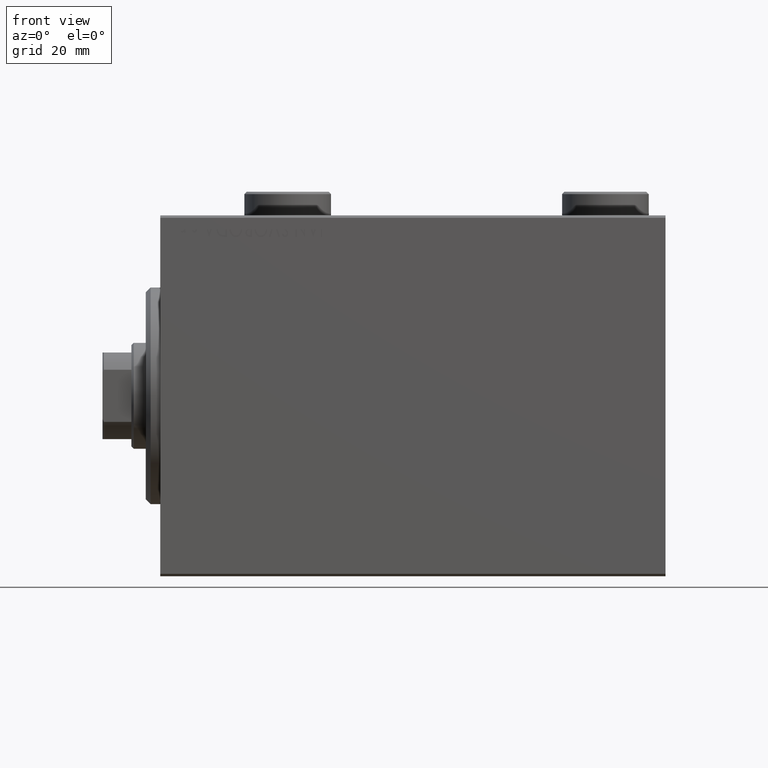
[diagram: clean part render]
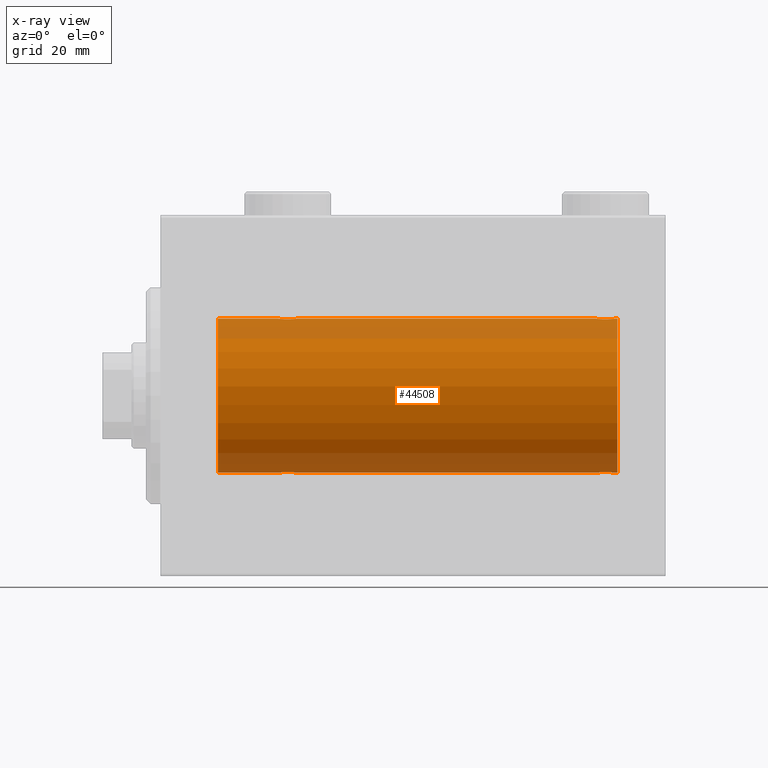
[diagram: x-ray — body ghosted, one internal face saturated and labeled with its STEP entity id]
A machine part, front view, then the same camera in x-ray: the body is ghosted and one INTERNAL B-rep face — a face not visible from any outside direction — is saturated and labeled: STEP entity #44508.
In plain terms, the highlighted cylindrical surface (partial cylindrical patch) has radius 16 mm, axis along (-1, -0, -0).
Its self-contained STEP definition (entity closure, byte-faithful):
#91 = VERTEX_POINT ( 'NONE', #16807 ) ;
#100 = ORIENTED_EDGE ( 'NONE', *, *, #30499, .T. ) ;
#271 = CARTESIAN_POINT ( 'NONE',  ( 25.17695155286792286, -1.505501573616977673, 15.92928245046054947 ) ) ;
#354 = VERTEX_POINT ( 'NONE', #15163 ) ;
#646 = CARTESIAN_POINT ( 'NONE',  ( 90.90061418674619631, -1.228793614424119829, 15.95381972293797013 ) ) ;
#880 = CARTESIAN_POINT ( 'NONE',  ( 92.36633336824381502, -1.999904855391108960, 15.87451985347843042 ) ) ;
#1058 = B_SPLINE_CURVE_WITH_KNOTS ( 'NONE', 3,
 ( #35752, #10642, #31847, #10871, #38749, #271, #18245, #27943, #13651, #41744, #10181, #11770, #36430, #43794, #11541, #29747, #11320, #32737, #42888, #1170, #14790, #25840, #15697, #29293, #32513, #26063 ),
 .UNSPECIFIED., .F., .F.,
 ( 4, 2, 2, 2, 2, 2, 2, 2, 2, 2, 2, 2, 4 ),
 ( 0.006259031236593858190, 0.007041222816026928080, 0.007823414395459998838, 0.008214510185176533349, 0.008605605974893067861, 0.008996701764609604107, 0.009387797554326138619, 0.009778893344042673130, 0.01016998913375920938, 0.01056108492347574389, 0.01095218071319227840, 0.01173437229262534048, 0.01251656387205840430 ),
 .UNSPECIFIED. ) ;
#1097 = CARTESIAN_POINT ( 'NONE',  ( 91.27971966521590730, -1.589957129871035102, 15.92097237843275259 ) ) ;
#1170 = CARTESIAN_POINT ( 'NONE',  ( 27.71821872840285295, -1.591545514129674821, 15.92081325887754595 ) ) ;
#1700 = EDGE_CURVE ( 'NONE', #28272, #91, #24541, .T. ) ;
#1932 = CARTESIAN_POINT ( 'NONE',  ( 27.38846140829280529, -1.796613193944152753, -15.89889131367403330 ) ) ;
#1995 = CARTESIAN_POINT ( 'NONE',  ( 92.23917179650634068, -1.987201773464433607, -15.87613558886576470 ) ) ;
#2225 = CARTESIAN_POINT ( 'NONE',  ( 93.82304844713209491, -1.505501573616973898, -15.92928245046055302 ) ) ;
#3053 = AXIS2_PLACEMENT_3D ( 'NONE', #3920, #38714, #7145 ) ;
#3920 = CARTESIAN_POINT ( 'NONE',  ( 95.00000000000000000, 0.000000000000000000, 0.000000000000000000 ) ) ;
#4779 = CARTESIAN_POINT ( 'NONE',  ( 93.14376670717342677, -1.898087287925297462, 15.88709570026284723 ) ) ;
#4946 = CARTESIAN_POINT ( 'NONE',  ( 28.44751141031268915, -0.5244724041436300555, -15.99321727742820620 ) ) ;
#5238 = CARTESIAN_POINT ( 'NONE',  ( 93.82104334803408108, -1.507256214862775723, 15.92911555180482175 ) ) ;
#5400 = CARTESIAN_POINT ( 'NONE',  ( 28.09938581325380724, -1.228793614424118497, -15.95381972293796835 ) ) ;
#5614 = CARTESIAN_POINT ( 'NONE',  ( 26.76370462878175260, -1.986819684797417995, -15.87618369521984185 ) ) ;
#5772 = ORIENTED_EDGE ( 'NONE', *, *, #32709, .F. ) ;
#6042 = B_SPLINE_CURVE_WITH_KNOTS ( 'NONE', 3,
 ( #22089, #8013, #32673, #36370, #16528, #2225, #36819, #30348, #15848, #26441, #44630, #37041, #37484, #29897, #1995, #44401, #40487, #27124, #19992, #12832, #8468, #23210, #22546, #34043, #43948, #13061 ),
 .UNSPECIFIED., .F., .F.,
 ( 4, 2, 2, 2, 2, 2, 2, 2, 2, 2, 2, 2, 4 ),
 ( 0.006259031236593878139, 0.007041222816026954968, 0.007823414395460031798, 0.008214510185176569779, 0.008605605974893107760, 0.008996701764609645741, 0.009387797554326183722, 0.009778893344042721703, 0.01016998913375926142, 0.01056108492347579940, 0.01095218071319233738, 0.01173437229262538559, 0.01251656387205843206 ),
 .UNSPECIFIED. ) ;
#6090 = CARTESIAN_POINT ( 'NONE',  ( 25.49921634246596014, -1.736521253711144963, -15.90565326803671375 ) ) ;
#6482 = EDGE_CURVE ( 'NONE', #32427, #42300, #9057, .T. ) ;
#6516 = VERTEX_POINT ( 'NONE', #16207 ) ;
#6619 = CARTESIAN_POINT ( 'NONE',  ( 94.50000000000000000, 3.590027768233731054E-15, 16.00000000000000000 ) ) ;
#6701 = ORIENTED_EDGE ( 'NONE', *, *, #6482, .T. ) ;
#7145 = DIRECTION ( 'NONE',  ( 0.000000000000000000, 0.000000000000000000, 1.000000000000000000 ) ) ;
#7348 = LINE ( 'NONE', #29000, #38401 ) ;
#7734 = ORIENTED_EDGE ( 'NONE', *, *, #29167, .F. ) ;
#8007 = CARTESIAN_POINT ( 'NONE',  ( 93.01664001081056199, -1.936513707523808359, 15.88239801746206226 ) ) ;
#8013 = CARTESIAN_POINT ( 'NONE',  ( 94.50000000000001421, -0.2611263091397177938, -16.00000000000000000 ) ) ;
#8468 = CARTESIAN_POINT ( 'NONE',  ( 91.17895665196597577, -1.507256214862789268, -15.92911555180481464 ) ) ;
#8954 = CIRCLE ( 'NONE', #20765, 16.00000000000000000 ) ;
#8961 = CARTESIAN_POINT ( 'NONE',  ( 90.50000000000000000, -8.578174582294765095E-15, -16.00000000000000000 ) ) ;
#9057 = LINE ( 'NONE', #26806, #32303 ) ;
#9637 = DIRECTION ( 'NONE',  ( -1.000000000000000000, 0.000000000000000000, 0.000000000000000000 ) ) ;
#10062 = VERTEX_POINT ( 'NONE', #36659 ) ;
#10098 = CARTESIAN_POINT ( 'NONE',  ( 95.00000000000000000, 0.000000000000000000, 16.00000000000000000 ) ) ;
#10181 = CARTESIAN_POINT ( 'NONE',  ( 25.98062885452072734, -1.935780515549995862, 15.88248768234623221 ) ) ;
#10642 = CARTESIAN_POINT ( 'NONE',  ( 24.50000000000000355, -0.2611263091397209579, 16.00000000000000000 ) ) ;
#10665 = DIRECTION ( 'NONE',  ( 0.000000000000000000, 0.000000000000000000, 1.000000000000000000 ) ) ;
#10871 = CARTESIAN_POINT ( 'NONE',  ( 24.75183372993787856, -1.005876079953904600, 15.97016854943970543 ) ) ;
#11067 = FACE_OUTER_BOUND ( 'NONE', #13690, .T. ) ;
#11253 = CARTESIAN_POINT ( 'NONE',  ( 91.85363637129542269, -1.897207606501646771, 15.88720136683946471 ) ) ;
#11320 = CARTESIAN_POINT ( 'NONE',  ( 27.14376670717340545, -1.898087287925302125, 15.88709570026284545 ) ) ;
#11541 = CARTESIAN_POINT ( 'NONE',  ( 26.76082820349364866, -1.987201773464435828, 15.87613558886576470 ) ) ;
#11770 = CARTESIAN_POINT ( 'NONE',  ( 26.23629537121825095, -1.986819684797424435, 15.87618369521983475 ) ) ;
#11919 = ORIENTED_EDGE ( 'NONE', *, *, #30151, .T. ) ;
#11928 = CARTESIAN_POINT ( 'NONE',  ( 93.50078365753404341, -1.736521253711147628, 15.90565326803670665 ) ) ;
#12094 = CARTESIAN_POINT ( 'NONE',  ( 26.36919591423421139, -2.000094120337574388, -15.87449600834271024 ) ) ;
#12149 = CARTESIAN_POINT ( 'NONE',  ( 94.50000000000000000, 3.590027768233731054E-15, 16.00000000000000000 ) ) ;
#12690 = DIRECTION ( 'NONE',  ( -1.000000000000000000, -0.000000000000000000, -0.000000000000000000 ) ) ;
#12773 = CARTESIAN_POINT ( 'NONE',  ( 27.72028033478412112, -1.589957129871027330, -15.92097237843274904 ) ) ;
#12832 = CARTESIAN_POINT ( 'NONE',  ( 91.28178127159716837, -1.591545514129675043, -15.92081325887754417 ) ) ;
#13061 = CARTESIAN_POINT ( 'NONE',  ( 90.50000000000000000, -8.578174582294765095E-15, -16.00000000000000000 ) ) ;
#13651 = CARTESIAN_POINT ( 'NONE',  ( 25.61153859170720537, -1.796613193944160969, 15.89889131367403685 ) ) ;
#13690 = EDGE_LOOP ( 'NONE', ( #5772, #21299, #43132, #24961, #100, #6701, #32598, #7734, #29980, #24426, #11919, #30606 ) ) ;
#13695 = CARTESIAN_POINT ( 'NONE',  ( 24.50000000000000711, -0.2645044045393414311, -16.00000000000000355 ) ) ;
#13787 = EDGE_CURVE ( 'NONE', #91, #29085, #6042, .T. ) ;
#14202 = CARTESIAN_POINT ( 'NONE',  ( 28.49999999999999645, 1.959434851239213200E-15, -16.00000000000000000 ) ) ;
#14582 = DIRECTION ( 'NONE',  ( -1.000000000000000000, 0.000000000000000000, 0.000000000000000000 ) ) ;
#14790 = CARTESIAN_POINT ( 'NONE',  ( 27.82104334803405266, -1.507256214862787713, 15.92911555180482530 ) ) ;
#14983 = CARTESIAN_POINT ( 'NONE',  ( 24.50000000000000000, -2.931586893697621157E-15, -16.00000000000000000 ) ) ;
#15163 = CARTESIAN_POINT ( 'NONE',  ( 11.99999999999999645, 0.000000000000000000, 16.00000000000000000 ) ) ;
#15396 = CARTESIAN_POINT ( 'NONE',  ( 92.63080408576576019, -2.000094120337579273, 15.87449600834271024 ) ) ;
#15572 = CARTESIAN_POINT ( 'NONE',  ( 27.14636362870458086, -1.897207606501646104, -15.88720136683947537 ) ) ;
#15697 = CARTESIAN_POINT ( 'NONE',  ( 28.24678128854693426, -1.008257970366811751, 15.97001510549667103 ) ) ;
#15775 = VERTEX_POINT ( 'NONE', #29724 ) ;
#15848 = CARTESIAN_POINT ( 'NONE',  ( 93.38846140829282660, -1.796613193944154974, -15.89889131367402975 ) ) ;
#16207 = CARTESIAN_POINT ( 'NONE',  ( 24.50000000000000000, -2.739635037742051899E-23, 16.00000000000000000 ) ) ;
#16528 = CARTESIAN_POINT ( 'NONE',  ( 94.09938581325380369, -1.228793614424119385, -15.95381972293797013 ) ) ;
#16795 = EDGE_CURVE ( 'NONE', #29085, #29665, #7348, .T. ) ;
#16807 = CARTESIAN_POINT ( 'NONE',  ( 94.50000000000000000, 1.959434851248285101E-15, -16.00000000000000000 ) ) ;
#16929 = CARTESIAN_POINT ( 'NONE',  ( 24.55325995304361086, -0.5272875822566835957, -15.99312147175147736 ) ) ;
#17311 = EDGE_CURVE ( 'NONE', #42300, #354, #8954, .T. ) ;
#17379 = CARTESIAN_POINT ( 'NONE',  ( 25.61407850031505617, -1.797863738508699294, -15.89874935709251247 ) ) ;
#18245 = CARTESIAN_POINT ( 'NONE',  ( 25.27971966521589664, -1.589957129871035768, 15.92097237843274549 ) ) ;
#18639 = CARTESIAN_POINT ( 'NONE',  ( 90.50000000000000000, -2.738767290746308786E-23, 16.00000000000000000 ) ) ;
#19021 = CARTESIAN_POINT ( 'NONE',  ( 27.50320784791317763, -1.735114343256362712, -15.90580722143557502 ) ) ;
#19253 = CARTESIAN_POINT ( 'NONE',  ( 28.49999999999999645, 1.959434851239213200E-15, -16.00000000000000000 ) ) ;
#19640 = VECTOR ( 'NONE', #42135, 1000.000000000000000 ) ;
#19696 = CARTESIAN_POINT ( 'NONE',  ( 25.98335998918949841, -1.936513707523809469, -15.88239801746204805 ) ) ;
#19753 = CARTESIAN_POINT ( 'NONE',  ( 94.24678128854695558, -1.008257970366810641, 15.97001510549667458 ) ) ;
#19992 = CARTESIAN_POINT ( 'NONE',  ( 91.49921634246594238, -1.736521253711148072, -15.90565326803670310 ) ) ;
#20765 = AXIS2_PLACEMENT_3D ( 'NONE', #43129, #14582, #10665 ) ;
#20850 = CARTESIAN_POINT ( 'NONE',  ( 24.90236864042802267, -1.231048876942801407, -15.95364199493483426 ) ) ;
#21299 = ORIENTED_EDGE ( 'NONE', *, *, #1700, .T. ) ;
#21422 = CARTESIAN_POINT ( 'NONE',  ( 90.55248858968731440, -0.5244724041436340523, 15.99321727742820975 ) ) ;
#21542 = DIRECTION ( 'NONE',  ( -1.000000000000000000, -0.000000000000000000, -0.000000000000000000 ) ) ;
#22089 = CARTESIAN_POINT ( 'NONE',  ( 94.50000000000000000, 1.959434851248285101E-15, -16.00000000000000000 ) ) ;
#22546 = CARTESIAN_POINT ( 'NONE',  ( 90.75321871145305863, -1.008257970366817746, -15.97001510549667103 ) ) ;
#22704 = CARTESIAN_POINT ( 'NONE',  ( 27.82304844713206293, -1.505501573616970568, -15.92928245046054947 ) ) ;
#22937 = CARTESIAN_POINT ( 'NONE',  ( 28.24816627006211078, -1.005876079953899049, -15.97016854943970188 ) ) ;
#23153 = CARTESIAN_POINT ( 'NONE',  ( 28.50000000000000355, -0.2611263091397186265, -16.00000000000000355 ) ) ;
#23210 = CARTESIAN_POINT ( 'NONE',  ( 90.90236864042798004, -1.231048876942805403, -15.95364199493483071 ) ) ;
#23433 = CARTESIAN_POINT ( 'NONE',  ( 94.49999999999994316, -0.2645044045393390997, 15.99999999999999645 ) ) ;
#24426 = ORIENTED_EDGE ( 'NONE', *, *, #30936, .F. ) ;
#24533 = CARTESIAN_POINT ( 'NONE',  ( 24.75321871145306218, -1.008257970366813749, -15.97001510549667458 ) ) ;
#24541 = LINE ( 'NONE', #28443, #34424 ) ;
#24658 = CARTESIAN_POINT ( 'NONE',  ( 28.49999999999999645, -1.207828523974853969E-15, 16.00000000000000000 ) ) ;
#24961 = ORIENTED_EDGE ( 'NONE', *, *, #16795, .T. ) ;
#25105 = CARTESIAN_POINT ( 'NONE',  ( 90.75183372993787145, -1.005876079953903046, 15.97016854943970188 ) ) ;
#25141 = CYLINDRICAL_SURFACE ( 'NONE', #3053, 16.00000000000000000 ) ;
#25320 = CARTESIAN_POINT ( 'NONE',  ( 91.98062885452070248, -1.935780515549992975, 15.88248768234622865 ) ) ;
#25536 = CARTESIAN_POINT ( 'NONE',  ( 91.17695155286793351, -1.505501573616972788, 15.92928245046055657 ) ) ;
#25762 = CARTESIAN_POINT ( 'NONE',  ( 91.49679215208686855, -1.735114343256368930, 15.90580722143557857 ) ) ;
#25840 = CARTESIAN_POINT ( 'NONE',  ( 28.09763135957198799, -1.231048876942802961, 15.95364199493483781 ) ) ;
#25990 = CARTESIAN_POINT ( 'NONE',  ( 93.71821872840287426, -1.591545514129673267, 15.92081325887755305 ) ) ;
#26063 = CARTESIAN_POINT ( 'NONE',  ( 28.49999999999999645, -1.207828523974853969E-15, 16.00000000000000000 ) ) ;
#26152 = CARTESIAN_POINT ( 'NONE',  ( 26.23917179650637266, -1.987201773464430055, -15.87613558886576470 ) ) ;
#26441 = CARTESIAN_POINT ( 'NONE',  ( 93.14636362870457731, -1.897207606501649435, -15.88720136683946826 ) ) ;
#26601 = VERTEX_POINT ( 'NONE', #24658 ) ;
#26806 = CARTESIAN_POINT ( 'NONE',  ( 95.00000000000000000, 1.959434878635765131E-15, -16.00000000000000000 ) ) ;
#26830 = CARTESIAN_POINT ( 'NONE',  ( 25.85623329282660166, -1.898087287925298794, -15.88709570026284545 ) ) ;
#26885 = CARTESIAN_POINT ( 'NONE',  ( 94.44674004695637848, -0.5272875822566811532, 15.99312147175147025 ) ) ;
#27062 = CARTESIAN_POINT ( 'NONE',  ( 25.28178127159713995, -1.591545514129671046, -15.92081325887754417 ) ) ;
#27124 = CARTESIAN_POINT ( 'NONE',  ( 91.61407850031504552, -1.797863738508702180, -15.89874935709250892 ) ) ;
#27943 = CARTESIAN_POINT ( 'NONE',  ( 25.49679215208682592, -1.735114343256370262, 15.90580722143557502 ) ) ;
#28093 = LINE ( 'NONE', #10098, #19640 ) ;
#28272 = VERTEX_POINT ( 'NONE', #32749 ) ;
#28443 = CARTESIAN_POINT ( 'NONE',  ( 95.00000000000000000, 1.959434878635765131E-15, -16.00000000000000000 ) ) ;
#28599 = AXIS2_PLACEMENT_3D ( 'NONE', #41196, #9637, #38210 ) ;
#29000 = CARTESIAN_POINT ( 'NONE',  ( 95.00000000000000000, 1.959434878635765131E-15, -16.00000000000000000 ) ) ;
#29085 = VERTEX_POINT ( 'NONE', #8961 ) ;
#29167 = EDGE_CURVE ( 'NONE', #6516, #354, #28093, .T. ) ;
#29293 = CARTESIAN_POINT ( 'NONE',  ( 28.44674004695639624, -0.5272875822566815973, 15.99312147175146670 ) ) ;
#29533 = CARTESIAN_POINT ( 'NONE',  ( 95.00000000000000000, 0.000000000000000000, 16.00000000000000000 ) ) ;
#29619 = CARTESIAN_POINT ( 'NONE',  ( 26.63366663175618498, -1.999904855391105851, -15.87451985347842687 ) ) ;
#29665 = VERTEX_POINT ( 'NONE', #14202 ) ;
#29674 = CARTESIAN_POINT ( 'NONE',  ( 94.09763135957200575, -1.231048876942789194, 15.95364199493483426 ) ) ;
#29724 = CARTESIAN_POINT ( 'NONE',  ( 90.50000000000000000, -2.738767290746308786E-23, 16.00000000000000000 ) ) ;
#29747 = CARTESIAN_POINT ( 'NONE',  ( 27.01664001081050515, -1.936513707523814354, 15.88239801746204805 ) ) ;
#29897 = CARTESIAN_POINT ( 'NONE',  ( 92.36919591423422560, -2.000094120337580605, -15.87449600834270669 ) ) ;
#29980 = ORIENTED_EDGE ( 'NONE', *, *, #42145, .T. ) ;
#30151 = EDGE_CURVE ( 'NONE', #15775, #38615, #38777, .T. ) ;
#30348 = CARTESIAN_POINT ( 'NONE',  ( 93.50320784791315987, -1.735114343256370262, -15.90580722143557146 ) ) ;
#30499 = EDGE_CURVE ( 'NONE', #29665, #32427, #45350, .T. ) ;
#30606 = ORIENTED_EDGE ( 'NONE', *, *, #31342, .F. ) ;
#30936 = EDGE_CURVE ( 'NONE', #15775, #26601, #41967, .T. ) ;
#30970 = CARTESIAN_POINT ( 'NONE',  ( 25.17895665196594379, -1.507256214862784161, -15.92911555180481820 ) ) ;
#31342 = EDGE_CURVE ( 'NONE', #10062, #38615, #43803, .T. ) ;
#31482 = VECTOR ( 'NONE', #31837, 1000.000000000000000 ) ;
#31598 = CARTESIAN_POINT ( 'NONE',  ( 95.00000000000000000, 0.000000000000000000, 16.00000000000000000 ) ) ;
#31837 = DIRECTION ( 'NONE',  ( -1.000000000000000000, -0.000000000000000000, -0.000000000000000000 ) ) ;
#31847 = CARTESIAN_POINT ( 'NONE',  ( 24.55248858968731085, -0.5244724041436337192, 15.99321727742820975 ) ) ;
#32303 = VECTOR ( 'NONE', #40844, 1000.000000000000000 ) ;
#32427 = VERTEX_POINT ( 'NONE', #14983 ) ;
#32513 = CARTESIAN_POINT ( 'NONE',  ( 28.49999999999999289, -0.2645044045393371013, 16.00000000000000000 ) ) ;
#32598 = ORIENTED_EDGE ( 'NONE', *, *, #17311, .T. ) ;
#32667 = CARTESIAN_POINT ( 'NONE',  ( 90.50000000000002842, -0.2611263091397203473, 16.00000000000000355 ) ) ;
#32673 = CARTESIAN_POINT ( 'NONE',  ( 94.44751141031269981, -0.5244724041436332751, -15.99321727742821331 ) ) ;
#32709 = EDGE_CURVE ( 'NONE', #28272, #10062, #35962, .T. ) ;
#32737 = CARTESIAN_POINT ( 'NONE',  ( 27.38592149968496514, -1.797863738508701736, 15.89874935709250892 ) ) ;
#32749 = CARTESIAN_POINT ( 'NONE',  ( 95.00000000000000000, 1.959434878635765131E-15, -16.00000000000000000 ) ) ;
#32887 = CARTESIAN_POINT ( 'NONE',  ( 93.38592149968496869, -1.797863738508694853, 15.89874935709250536 ) ) ;
#34043 = CARTESIAN_POINT ( 'NONE',  ( 90.55325995304356468, -0.5272875822566887027, -15.99312147175147381 ) ) ;
#34424 = VECTOR ( 'NONE', #21542, 1000.000000000000000 ) ;
#35012 = DIRECTION ( 'NONE',  ( -1.000000000000000000, -0.000000000000000000, -0.000000000000000000 ) ) ;
#35752 = CARTESIAN_POINT ( 'NONE',  ( 24.50000000000000000, -2.739635037742051899E-23, 16.00000000000000000 ) ) ;
#35962 = CIRCLE ( 'NONE', #28599, 16.00000000000000000 ) ;
#36363 = CARTESIAN_POINT ( 'NONE',  ( 91.61153859170717340, -1.796613193944154085, 15.89889131367403330 ) ) ;
#36370 = CARTESIAN_POINT ( 'NONE',  ( 94.24816627006208591, -1.005876079953902824, -15.97016854943970188 ) ) ;
#36430 = CARTESIAN_POINT ( 'NONE',  ( 26.36633336824380436, -1.999904855391111402, 15.87451985347842687 ) ) ;
#36659 = CARTESIAN_POINT ( 'NONE',  ( 95.00000000000000000, 0.000000000000000000, 16.00000000000000000 ) ) ;
#36819 = CARTESIAN_POINT ( 'NONE',  ( 93.72028033478409270, -1.589957129871036212, -15.92097237843274904 ) ) ;
#37041 = CARTESIAN_POINT ( 'NONE',  ( 92.76370462878179524, -1.986819684797421326, -15.87618369521984185 ) ) ;
#37101 = CARTESIAN_POINT ( 'NONE',  ( 11.99999999999999645, 1.959434878635765131E-15, -16.00000000000000000 ) ) ;
#37193 = CARTESIAN_POINT ( 'NONE',  ( 27.01937114547927266, -1.935780515549990088, -15.88248768234623576 ) ) ;
#37484 = CARTESIAN_POINT ( 'NONE',  ( 92.63366663175619919, -1.999904855391108960, -15.87451985347842687 ) ) ;
#37886 = CARTESIAN_POINT ( 'NONE',  ( 24.50000000000000000, -2.931586893697621157E-15, -16.00000000000000000 ) ) ;
#38210 = DIRECTION ( 'NONE',  ( 0.000000000000000000, 0.000000000000000000, 1.000000000000000000 ) ) ;
#38401 = VECTOR ( 'NONE', #35012, 1000.000000000000000 ) ;
#38615 = VERTEX_POINT ( 'NONE', #6619 ) ;
#38714 = DIRECTION ( 'NONE',  ( -1.000000000000000000, -0.000000000000000000, -0.000000000000000000 ) ) ;
#38749 = CARTESIAN_POINT ( 'NONE',  ( 24.90061418674620342, -1.228793614424124714, 15.95381972293797368 ) ) ;
#38777 = B_SPLINE_CURVE_WITH_KNOTS ( 'NONE', 3,
 ( #18639, #32667, #21422, #25105, #646, #25536, #1097, #25762, #36363, #11253, #25320, #43503, #880, #15396, #39575, #8007, #4779, #32887, #11928, #25990, #5238, #29674, #19753, #26885, #23433, #12149 ),
 .UNSPECIFIED., .F., .F.,
 ( 4, 2, 2, 2, 2, 2, 2, 2, 2, 2, 2, 2, 4 ),
 ( 0.006259031236593860792, 0.007041222816026923743, 0.007823414395459986695, 0.008214510185176517737, 0.008605605974893048779, 0.008996701764609579821, 0.009387797554326112598, 0.009778893344042641905, 0.01016998913375917295, 0.01056108492347570399, 0.01095218071319223503, 0.01173437229262532661, 0.01251656387205841645 ),
 .UNSPECIFIED. ) ;
#39575 = CARTESIAN_POINT ( 'NONE',  ( 92.76082820349367353, -1.987201773464430943, 15.87613558886576470 ) ) ;
#40487 = CARTESIAN_POINT ( 'NONE',  ( 91.85623329282657323, -1.898087287925303457, -15.88709570026284545 ) ) ;
#40844 = DIRECTION ( 'NONE',  ( -1.000000000000000000, -0.000000000000000000, -0.000000000000000000 ) ) ;
#41196 = CARTESIAN_POINT ( 'NONE',  ( 95.00000000000000000, 0.000000000000000000, 0.000000000000000000 ) ) ;
#41744 = CARTESIAN_POINT ( 'NONE',  ( 25.85363637129542624, -1.897207606501653432, 15.88720136683947182 ) ) ;
#41967 = LINE ( 'NONE', #31598, #31482 ) ;
#42135 = DIRECTION ( 'NONE',  ( -1.000000000000000000, -0.000000000000000000, -0.000000000000000000 ) ) ;
#42145 = EDGE_CURVE ( 'NONE', #6516, #26601, #1058, .T. ) ;
#42300 = VERTEX_POINT ( 'NONE', #37101 ) ;
#42888 = CARTESIAN_POINT ( 'NONE',  ( 27.50078365753405407, -1.736521253711149182, 15.90565326803671375 ) ) ;
#43129 = CARTESIAN_POINT ( 'NONE',  ( 11.99999999999999645, 0.000000000000000000, 0.000000000000000000 ) ) ;
#43132 = ORIENTED_EDGE ( 'NONE', *, *, #13787, .T. ) ;
#43503 = CARTESIAN_POINT ( 'NONE',  ( 92.23629537121824740, -1.986819684797422658, 15.87618369521983830 ) ) ;
#43794 = CARTESIAN_POINT ( 'NONE',  ( 26.63080408576578861, -2.000094120337581050, 15.87449600834271735 ) ) ;
#43803 = LINE ( 'NONE', #29533, #44731 ) ;
#43948 = CARTESIAN_POINT ( 'NONE',  ( 90.49999999999997158, -0.2645044045393486476, -16.00000000000000000 ) ) ;
#44401 = CARTESIAN_POINT ( 'NONE',  ( 91.98335998918948064, -1.936513707523812577, -15.88239801746205160 ) ) ;
#44508 = ADVANCED_FACE ( 'NONE', ( #11067 ), #25141, .F. ) ;
#44630 = CARTESIAN_POINT ( 'NONE',  ( 93.01937114547928331, -1.935780515549991199, -15.88248768234623576 ) ) ;
#44731 = VECTOR ( 'NONE', #12690, 1000.000000000000000 ) ;
#45350 = B_SPLINE_CURVE_WITH_KNOTS ( 'NONE', 3,
 ( #19253, #23153, #4946, #22937, #5400, #22704, #12773, #19021, #1932, #15572, #37193, #5614, #29619, #12094, #26152, #19696, #26830, #17379, #6090, #27062, #30970, #20850, #24533, #16929, #13695, #37886 ),
 .UNSPECIFIED., .F., .F.,
 ( 4, 2, 2, 2, 2, 2, 2, 2, 2, 2, 2, 2, 4 ),
 ( 0.006259031236593877272, 0.007041222816026943693, 0.007823414395460009246, 0.008214510185176542023, 0.008605605974893074800, 0.008996701764609607577, 0.009387797554326140353, 0.009778893344042673130, 0.01016998913375920591, 0.01056108492347573868, 0.01095218071319227146, 0.01173437229262534222, 0.01251656387205841471 ),
 .UNSPECIFIED. ) ;